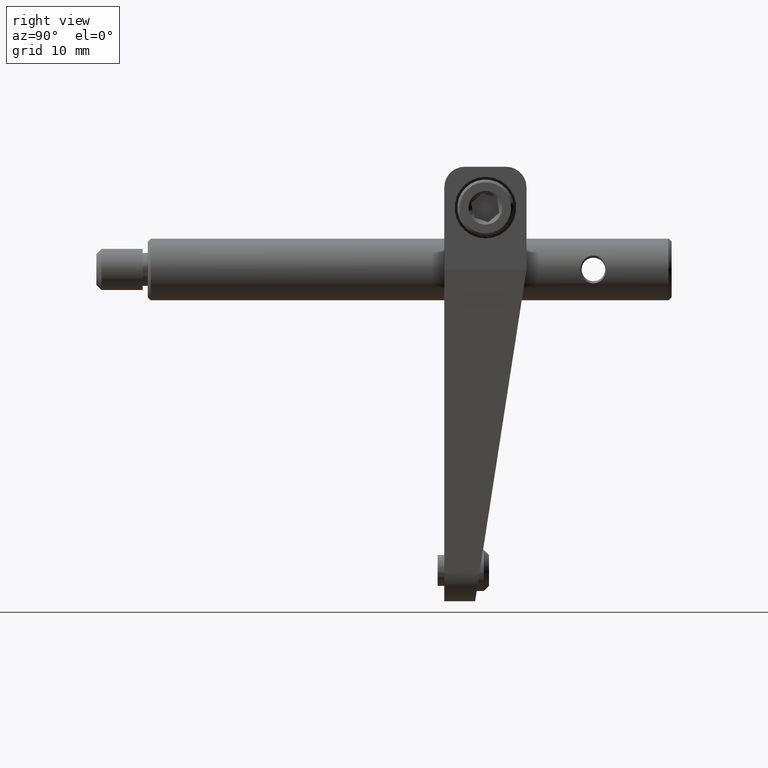
[diagram: clean part render]
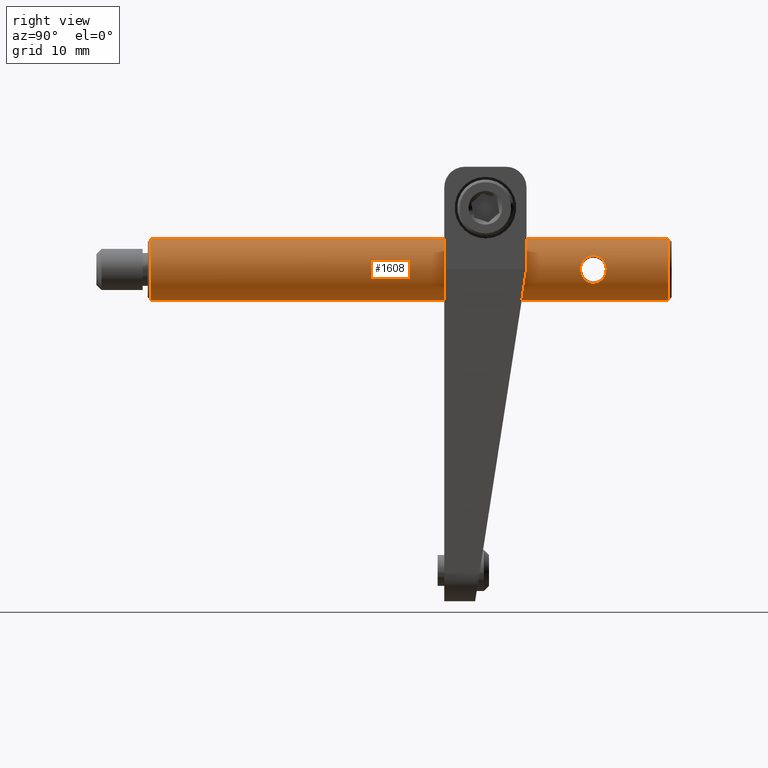
[diagram: same view with one face highlighted and labeled with its STEP entity id]
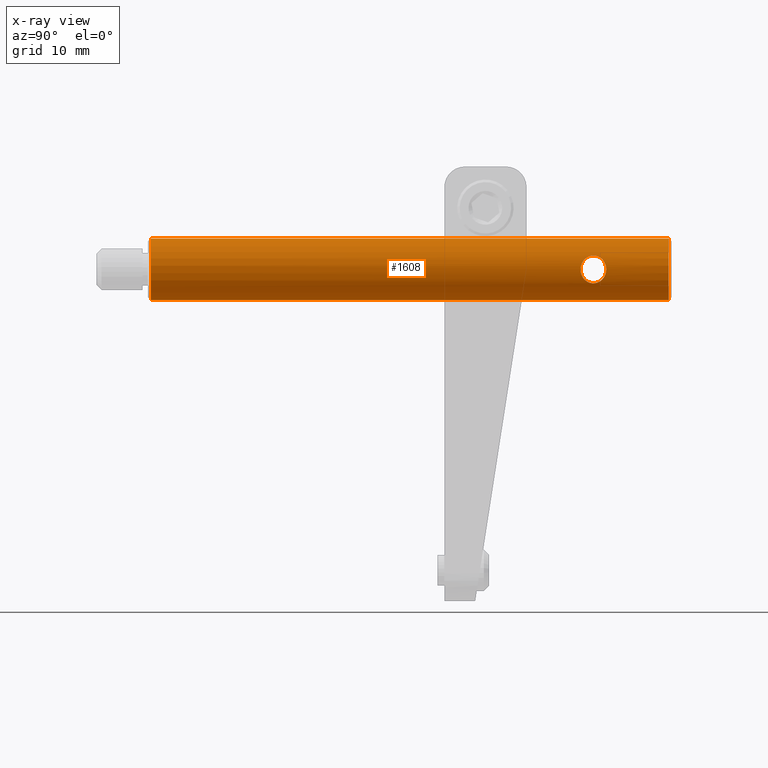
[diagram: x-ray of the same camera — body ghosted, the highlighted face saturated]
A machine part, right view. The second image highlights one B-rep face of the part: STEP entity #1608.
The next image is the same camera in x-ray: the body ghosted, the highlighted face saturated — about 0% of this face is hidden behind the body in this view.
In plain terms, the highlighted cylindrical surface (edge-blend (fillet) strip) has radius 3 mm, axis along (0, 1, -0).
Its self-contained STEP definition (entity closure, byte-faithful):
#159 = CARTESIAN_POINT ( 'NONE',  ( 2.440952296682797230E-15, -33.87046049776430579, 2.999999999999992006 ) ) ;
#278 = CARTESIAN_POINT ( 'NONE',  ( 2.924960236120037305, 15.60059161247845871, -0.6873555226380775318 ) ) ;
#294 = LINE ( 'NONE', #2945, #3632 ) ;
#410 = CARTESIAN_POINT ( 'NONE',  ( 2.698116405448379052, 14.83562238906146469, 1.311696637309199831 ) ) ;
#419 = VERTEX_POINT ( 'NONE', #6207 ) ;
#434 = CARTESIAN_POINT ( 'NONE',  ( 2.863688853552000868, 13.56736972206603475, 0.8964312029781126290 ) ) ;
#452 = CARTESIAN_POINT ( 'NONE',  ( 2.757722252271170849, 15.14094823425977765, 1.183430227519064681 ) ) ;
#531 = B_SPLINE_CURVE_WITH_KNOTS ( 'NONE', 3,
 ( #1257, #5697, #1275, #278, #1230, #3249, #4178, #3285, #3747, #5171, #2277, #1710, #5762, #4661, #1779, #5222, #736, #2732, #6208, #5153, #5722, #3226 ),
 .UNSPECIFIED., .F., .F.,
 ( 4, 2, 2, 2, 2, 2, 2, 2, 2, 2, 4 ),
 ( 0.5000000000000000000, 0.5624999999999996669, 0.6249999999999993339, 0.6874999999999990008, 0.7187499999999987788, 0.7499999999999986677, 0.8124999999999988898, 0.8437499999999991118, 0.8749999999999992228, 0.9374999999999995559, 1.000000000000000000 ),
 .UNSPECIFIED. ) ;
#684 = FACE_BOUND ( 'NONE', #1099, .T. ) ;
#736 = CARTESIAN_POINT ( 'NONE',  ( 2.821759406356705746, 13.68220159734866570, -1.020771760519608051 ) ) ;
#862 = CARTESIAN_POINT ( 'NONE',  ( 2.999999999999977796, 13.25812749439665517, 0.1792725095134123647 ) ) ;
#903 = CARTESIAN_POINT ( 'NONE',  ( 2.761066167029582186, 13.87947984027108816, 1.174434201937815780 ) ) ;
#921 = CARTESIAN_POINT ( 'NONE',  ( 2.800644241308057225, 13.74496156815449410, 1.076649389088557784 ) ) ;
#1022 = B_SPLINE_CURVE_WITH_KNOTS ( 'NONE', 3,
 ( #5312, #862, #2387, #1481, #3410, #3388, #434, #2408, #921, #903, #5979, #5898, #6439, #3904, #3454, #410, #3942, #452, #4389, #4407, #5961, #2432, #1951, #1442, #2910, #3431 ),
 .UNSPECIFIED., .F., .F.,
 ( 4, 2, 2, 2, 2, 2, 2, 2, 2, 2, 2, 2, 4 ),
 ( 0.0000000000000000000, 0.06250000000000015266, 0.09375000000000026368, 0.1250000000000003608, 0.1562500000000004718, 0.1875000000000005829, 0.2500000000000007772, 0.2812500000000008882, 0.3125000000000009992, 0.3750000000000006106, 0.4062500000000004996, 0.4375000000000003331, 0.5000000000000000000 ),
 .UNSPECIFIED. ) ;
#1039 = ORIENTED_EDGE ( 'NONE', *, *, #5408, .T. ) ;
#1099 = EDGE_LOOP ( 'NONE', ( #1039, #2513 ) ) ;
#1136 = CARTESIAN_POINT ( 'NONE',  ( 6.624584480617806712E-15, 21.82953950223510020, -1.291936450868185064E-14 ) ) ;
#1212 = CARTESIAN_POINT ( 'NONE',  ( 2.839730996853527221E-15, -28.57046049776449692, 3.000000000000001332 ) ) ;
#1219 = FACE_OUTER_BOUND ( 'NONE', #3898, .T. ) ;
#1229 = EDGE_CURVE ( 'NONE', #2987, #5946, #294, .T. ) ;
#1230 = CARTESIAN_POINT ( 'NONE',  ( 2.884294066402431689, 15.50822863371512206, -0.8354513049986220796 ) ) ;
#1257 = CARTESIAN_POINT ( 'NONE',  ( 2.999999987643642729, 15.76095144625781330, 0.0002722831132378207672 ) ) ;
#1275 = CARTESIAN_POINT ( 'NONE',  ( 2.983149971520940635, 15.72748536469476299, -0.3587007733460385595 ) ) ;
#1442 = CARTESIAN_POINT ( 'NONE',  ( 2.982897722331968371, 15.72698096181399841, 0.3607486686055442204 ) ) ;
#1481 = CARTESIAN_POINT ( 'NONE',  ( 2.939647029497024722, 13.38645943176342357, 0.6044172167952868158 ) ) ;
#1608 = ADVANCED_FACE ( 'NONE', ( #1219, #684 ), #5170, .T. ) ;
#1710 = CARTESIAN_POINT ( 'NONE',  ( 2.676271852669671159, 14.34675650874808994, -1.355569614470156337 ) ) ;
#1779 = CARTESIAN_POINT ( 'NONE',  ( 2.761335869332143922, 13.87852216340753664, -1.173788223218326543 ) ) ;
#1822 = CIRCLE ( 'NONE', #6305, 3.000000000000000444 ) ;
#1836 = AXIS2_PLACEMENT_3D ( 'NONE', #1136, #5099, #3153 ) ;
#1951 = CARTESIAN_POINT ( 'NONE',  ( 2.939118746011056160, 15.63144368163986364, 0.6070713325423668927 ) ) ;
#2149 = LINE ( 'NONE', #159, #5963 ) ;
#2273 = VERTEX_POINT ( 'NONE', #1212 ) ;
#2277 = CARTESIAN_POINT ( 'NONE',  ( 2.676336387088747326, 14.59108202414628153, -1.355442195525641935 ) ) ;
#2361 = DIRECTION ( 'NONE',  ( 7.524126418315677842E-17, 1.000000000000000000, -7.612291374223364996E-17 ) ) ;
#2387 = CARTESIAN_POINT ( 'NONE',  ( 2.982912540820854552, 13.29211263917638064, 0.3600167965124692615 ) ) ;
#2408 = CARTESIAN_POINT ( 'NONE',  ( 2.821769576235306332, 13.68215864003328264, 1.020744439251852764 ) ) ;
#2432 = CARTESIAN_POINT ( 'NONE',  ( 2.922001930620926391, 15.59308803765109985, 0.6838085386177545910 ) ) ;
#2513 = ORIENTED_EDGE ( 'NONE', *, *, #5103, .T. ) ;
#2688 = EDGE_CURVE ( 'NONE', #2273, #419, #2149, .T. ) ;
#2732 = CARTESIAN_POINT ( 'NONE',  ( 2.884629081610051493, 13.50999820706673304, -0.8343378208359049086 ) ) ;
#2910 = CARTESIAN_POINT ( 'NONE',  ( 2.999983700206368731, 15.76091215153125091, 0.1797263483800650430 ) ) ;
#2945 = CARTESIAN_POINT ( 'NONE',  ( 2.058945794805018854E-15, -33.87046049776430579, -3.000000000000009326 ) ) ;
#2953 = EDGE_CURVE ( 'NONE', #2273, #2987, #1822, .T. ) ;
#2987 = VERTEX_POINT ( 'NONE', #5125 ) ;
#3153 = DIRECTION ( 'NONE',  ( 1.249000902703299382E-16, 0.0000000000000000000, 1.000000000000000000 ) ) ;
#3226 = CARTESIAN_POINT ( 'NONE',  ( 2.999999999999992450, 13.25812753296480828, -1.208628541276297295E-14 ) ) ;
#3248 = EDGE_CURVE ( 'NONE', #5946, #419, #5140, .T. ) ;
#3249 = CARTESIAN_POINT ( 'NONE',  ( 2.800573892822785460, 15.27878334983262043, -1.083474510705081606 ) ) ;
#3285 = CARTESIAN_POINT ( 'NONE',  ( 2.711093813284414455, 14.91599828006264339, -1.285061600871080456 ) ) ;
#3388 = CARTESIAN_POINT ( 'NONE',  ( 2.884144009577200851, 13.51619933406249885, 0.8290878100566054787 ) ) ;
#3410 = CARTESIAN_POINT ( 'NONE',  ( 2.922115817965422302, 13.42573327629327373, 0.6833098939432828978 ) ) ;
#3431 = CARTESIAN_POINT ( 'NONE',  ( 2.999999987643642729, 15.76095144625781330, 0.0002722831132378207672 ) ) ;
#3454 = CARTESIAN_POINT ( 'NONE',  ( 2.680838108646906637, 14.67416093812401634, 1.346657803936999631 ) ) ;
#3487 = DIRECTION ( 'NONE',  ( 7.524126418315677842E-17, 1.000000000000000000, -7.612291374223364996E-17 ) ) ;
#3632 = VECTOR ( 'NONE', #3487, 1000.000000000000000 ) ;
#3747 = CARTESIAN_POINT ( 'NONE',  ( 2.698549850065670164, 14.83881784411628857, -1.310810487152642034 ) ) ;
#3889 = VERTEX_POINT ( 'NONE', #4926 ) ;
#3898 = EDGE_LOOP ( 'NONE', ( #5719, #6008, #4159, #4841 ) ) ;
#3904 = CARTESIAN_POINT ( 'NONE',  ( 2.676237538582433739, 14.59079298103216615, 1.355637365550170559 ) ) ;
#3942 = CARTESIAN_POINT ( 'NONE',  ( 2.711166441064888133, 14.91627407708852182, 1.284897392737178290 ) ) ;
#4159 = ORIENTED_EDGE ( 'NONE', *, *, #1229, .T. ) ;
#4178 = CARTESIAN_POINT ( 'NONE',  ( 2.758114549131693849, 15.14269143669162432, -1.182563344484240497 ) ) ;
#4337 = CARTESIAN_POINT ( 'NONE',  ( 2.999999999999992450, 13.25812753296480828, -1.208628541276297295E-14 ) ) ;
#4389 = CARTESIAN_POINT ( 'NONE',  ( 2.800714651327393501, 15.27912828047872118, 1.083018643079251664 ) ) ;
#4407 = CARTESIAN_POINT ( 'NONE',  ( 2.863156291266151676, 15.45031835419104915, 0.8980918865223290748 ) ) ;
#4442 = VERTEX_POINT ( 'NONE', #4337 ) ;
#4531 = CARTESIAN_POINT ( 'NONE',  ( 2.433646065616009187E-15, -33.87046049776430579, -8.679318213239465511E-15 ) ) ;
#4553 = DIRECTION ( 'NONE',  ( -1.249000902703300861E-16, 0.0000000000000000000, -1.000000000000000000 ) ) ;
#4600 = DIRECTION ( 'NONE',  ( 7.524126418315677842E-17, 1.000000000000000000, -7.612291374223364996E-17 ) ) ;
#4661 = CARTESIAN_POINT ( 'NONE',  ( 2.742473716033681619, 13.95185176675367877, -1.216650886242611085 ) ) ;
#4841 = ORIENTED_EDGE ( 'NONE', *, *, #3248, .T. ) ;
#4926 = CARTESIAN_POINT ( 'NONE',  ( 2.999999987643642729, 15.76095144625781330, 0.0002722831132378207672 ) ) ;
#5024 = AXIS2_PLACEMENT_3D ( 'NONE', #4531, #6082, #4553 ) ;
#5099 = DIRECTION ( 'NONE',  ( -7.524126418315677842E-17, -1.000000000000000000, 7.612291374223364996E-17 ) ) ;
#5103 = EDGE_CURVE ( 'NONE', #3889, #4442, #531, .T. ) ;
#5125 = CARTESIAN_POINT ( 'NONE',  ( 2.457724494975747268E-15, -28.57046049776449692, -3.000000000000019096 ) ) ;
#5140 = CIRCLE ( 'NONE', #1836, 3.000000000000000444 ) ;
#5153 = CARTESIAN_POINT ( 'NONE',  ( 2.983215448895172983, 13.29144654068014830, -0.3582007481519789982 ) ) ;
#5163 = CARTESIAN_POINT ( 'NONE',  ( 5.882490170062614090E-15, 21.82953950223510020, -3.000000000000013767 ) ) ;
#5170 = CYLINDRICAL_SURFACE ( 'NONE', #5024, 3.000000000000000444 ) ;
#5171 = CARTESIAN_POINT ( 'NONE',  ( 2.680936225662267969, 14.67590725962333309, -1.346468113417675694 ) ) ;
#5222 = CARTESIAN_POINT ( 'NONE',  ( 2.800703641045284797, 13.74480102377270008, -1.076482090544017556 ) ) ;
#5312 = CARTESIAN_POINT ( 'NONE',  ( 2.999999999999992450, 13.25812753296480828, -1.208628541276297295E-14 ) ) ;
#5408 = EDGE_CURVE ( 'NONE', #4442, #3889, #1022, .T. ) ;
#5697 = CARTESIAN_POINT ( 'NONE',  ( 3.000016275080889194, 15.76099074098449826, -0.1791817821535895139 ) ) ;
#5719 = ORIENTED_EDGE ( 'NONE', *, *, #2688, .F. ) ;
#5722 = CARTESIAN_POINT ( 'NONE',  ( 2.999999999999978240, 13.25812757189612690, -0.1809602804231130180 ) ) ;
#5762 = CARTESIAN_POINT ( 'NONE',  ( 2.695653176012092977, 14.17740724920466100, -1.318734166986754275 ) ) ;
#5804 = DIRECTION ( 'NONE',  ( 1.249000902703300861E-16, 0.0000000000000000000, 1.000000000000000000 ) ) ;
#5848 = CARTESIAN_POINT ( 'NONE',  ( 2.832424765786737995E-15, -28.57046049776449692, -9.082769656073301995E-15 ) ) ;
#5898 = CARTESIAN_POINT ( 'NONE',  ( 2.695361982634199904, 14.17841664063456086, 1.319405389925206951 ) ) ;
#5946 = VERTEX_POINT ( 'NONE', #5163 ) ;
#5961 = CARTESIAN_POINT ( 'NONE',  ( 2.883946077072288894, 15.50239432378445592, 0.8297857702915424349 ) ) ;
#5963 = VECTOR ( 'NONE', #4600, 1000.000000000000000 ) ;
#5979 = CARTESIAN_POINT ( 'NONE',  ( 2.742993584607463120, 13.94954636495516986, 1.215499031221563664 ) ) ;
#6008 = ORIENTED_EDGE ( 'NONE', *, *, #2953, .T. ) ;
#6082 = DIRECTION ( 'NONE',  ( 7.524126418315677842E-17, 1.000000000000000000, -7.612291374223364996E-17 ) ) ;
#6207 = CARTESIAN_POINT ( 'NONE',  ( 6.999284751428797044E-15, 21.82953950223510020, 2.999999999999987121 ) ) ;
#6208 = CARTESIAN_POINT ( 'NONE',  ( 2.925036744139989153, 13.41832485170394307, -0.6870532991947612134 ) ) ;
#6305 = AXIS2_PLACEMENT_3D ( 'NONE', #5848, #2361, #5804 ) ;
#6439 = CARTESIAN_POINT ( 'NONE',  ( 2.676471506585885507, 14.34184844803094627, 1.355175410641948686 ) ) ;